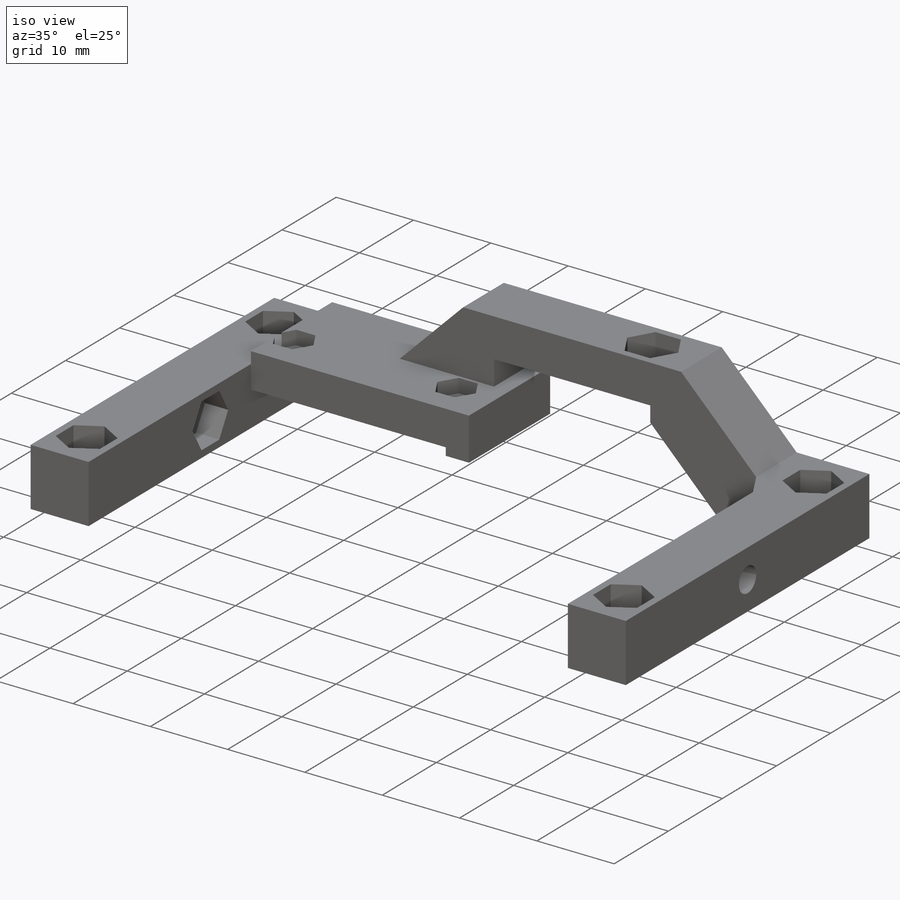
[diagram: iso view]
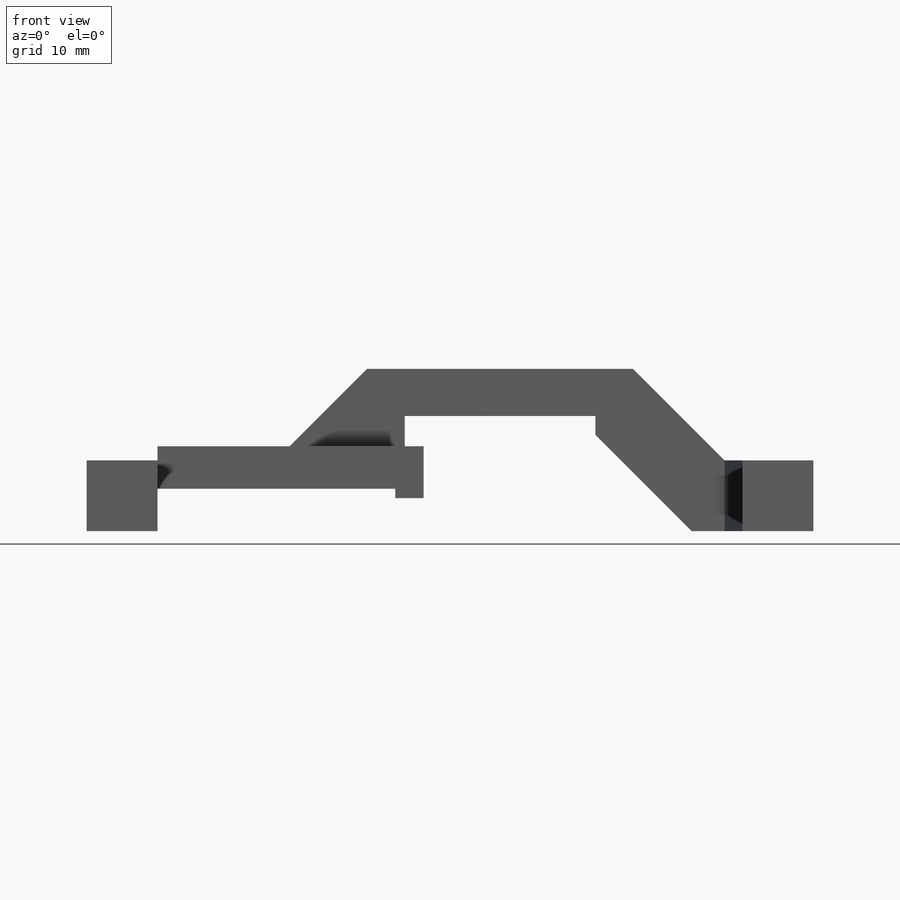
[diagram: front view]
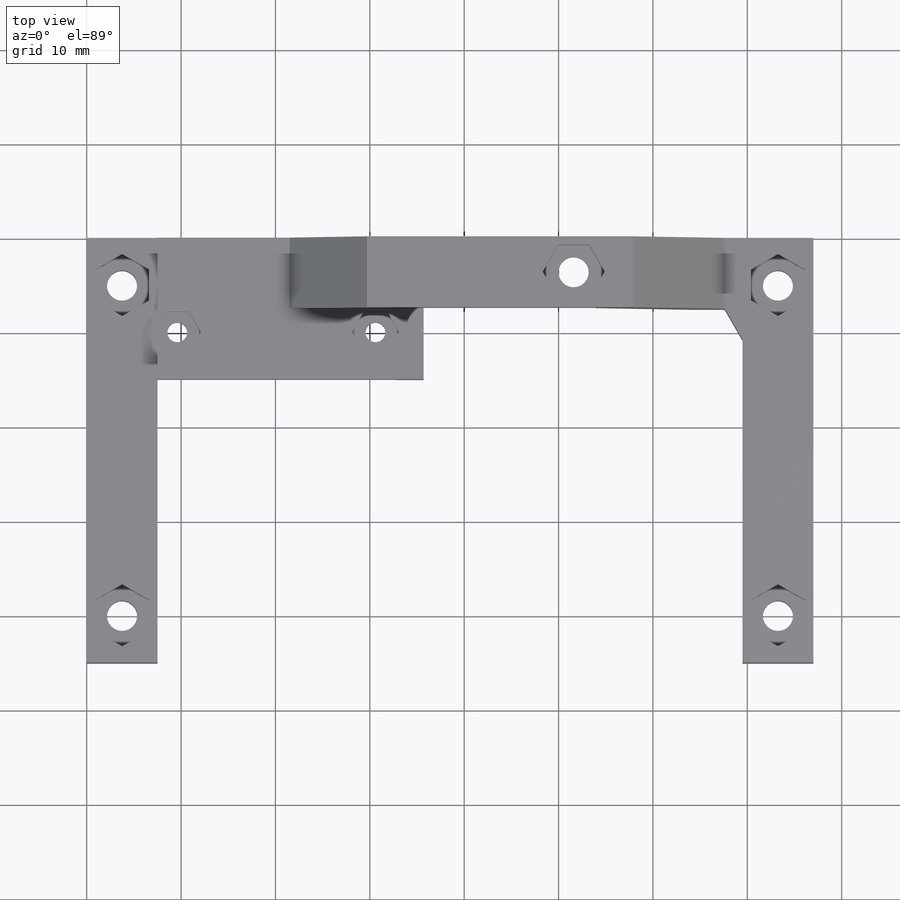
[diagram: top view]
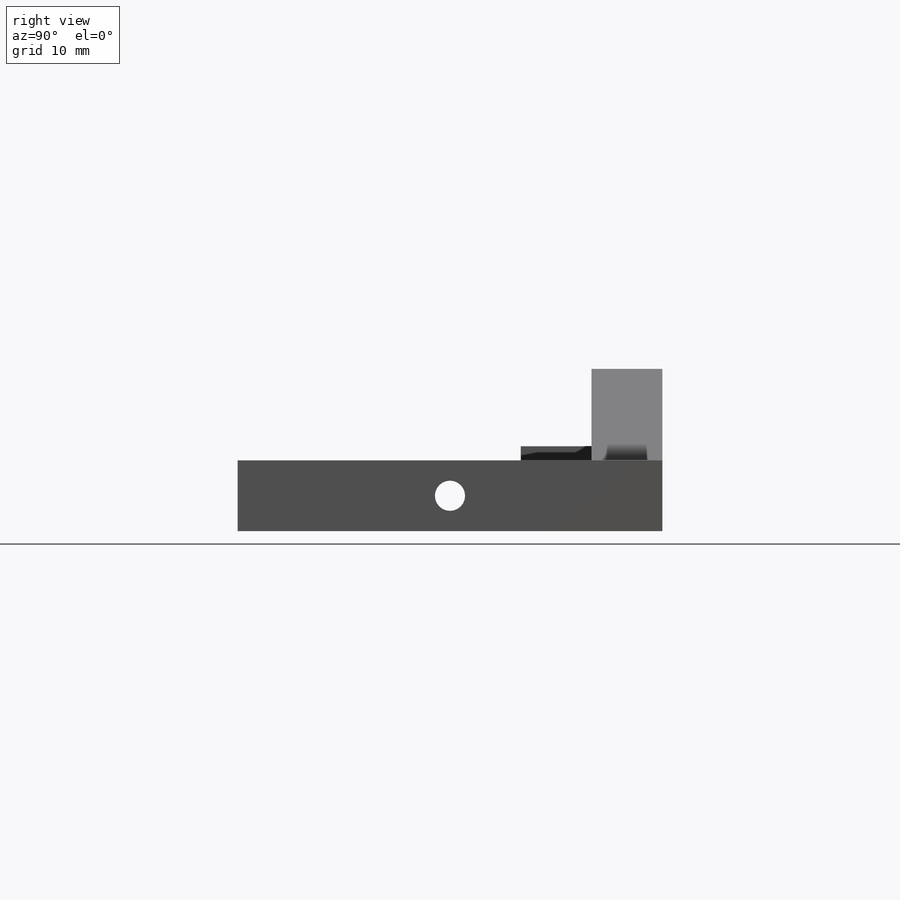
[diagram: right view]
SOLIDWORKS PART (.sldprt)
format: sldprt  version: not decoded by parser v0  size: 436,224 bytes
history: native  units: mm
features: sketch x15, cut_extrude x10, extrude x5, plane x4, material x1 (+13 scaffold rows collapsed)
feature tree (48):
  scaffold x13  (default folders/planes/origin — collapsed)
  material  "Material <sin especificar>"
  plane  "Alzado"
  plane  "Planta"
  plane  "Vista lateral"
  sketch  "Croquis1"  dims[c1.D1=7.5mm c1.D2=7.5mm c1.D3=4.5mm c2.D2=25.2mm c2.D4=1.0mm c2.D5=3.0mm c2.D6=3.0mm c2.D7=4.0mm c2.D8=10.5mm c2.D9=20.2mm c2.D10=2.0mm c2.D11=5.0mm c2.D12=2.0mm c2.D13=4.0mm c2.D14=7.5mm c2.D15=~13.869666mm c3.D15=135.0deg c3.D16=8.5mm c4.D16=135.0deg c4.D17=77.0mm c4.D18=6.0mm c4.D7=28.2mm c5.D7=135.0deg c5.D18=4.0mm c5.D8=3.2mm c5.D19=5.5mm c5.D6=7.5mm]
  extrude  "Saliente-Extruir1"  Depth=7.5mm
  sketch  "Croquis2"
  extrude  "Saliente-Extruir2"  Depth=7.5mm
  plane  "Plano1"  Offset=45mm
  sketch  "Croquis3"
  extrude  "Saliente-Extruir3"  [1 undecoded]
  sketch  "Croquis4"  dims[c1.D1=~7.433751mm c2.D1=60.0deg c2.D2=7.5mm]
  extrude  "Saliente-Extruir4"  [1 undecoded]
  sketch  "Croquis5"  dims[D1=0.0mm]
  extrude  "Saliente-Extruir5"  [1 undecoded]
  sketch  "Croquis7"  dims[D2=3.2mm D1=35.0mm]
  cut_extrude  "Cortar-Extruir1"  [1 undecoded]
  sketch  "Croquis8"  dims[D1=5.7mm]
  cut_extrude  "Cortar-Extruir2"  Depth=4.5mm
  sketch  "Croquis9"  dims[D1=3.2mm D2=2.3mm]
  cut_extrude  "Cortar-Extruir3"  [1 undecoded]
  sketch  "Croquis10"  dims[D1=5.7mm]
  cut_extrude  "Cortar-Extruir4"  Depth=3mm
  sketch  "Croquis11"  dims[D1=2.1mm D2=21.0mm D3=10.0mm]
  cut_extrude  "Cortar-Extruir5"  [1 undecoded]
  sketch  "Croquis12"  dims[D1=4.3mm]
  cut_extrude  "Cortar-Extruir6"  Depth=1.8mm
  sketch  "Croquis13"  dims[D1=3.2mm]
  cut_extrude  "Cortar-Extruir7"  [1 undecoded]
  sketch  "Croquis15"  dims[D1=5.7mm]
  cut_extrude  "Cortar-Extruir8"  Depth=3mm
  sketch  "Croquis16"  dims[D1=3.2mm]
  cut_extrude  "Cortar-Extruir9"  [1 undecoded]
  sketch  "Croquis17"  dims[D1=5.7mm]
  cut_extrude  "Cortar-Extruir10"  Depth=3mm
decode coverage: 20 of 30 modeling features carry decoded parameters
note: ~ marks probable driven/reference dimensions
note: 8 parameter values undecoded
summary: no parameter record found for 8 features
note: suppression state not decoded; provenance and decode notes live in map.json
